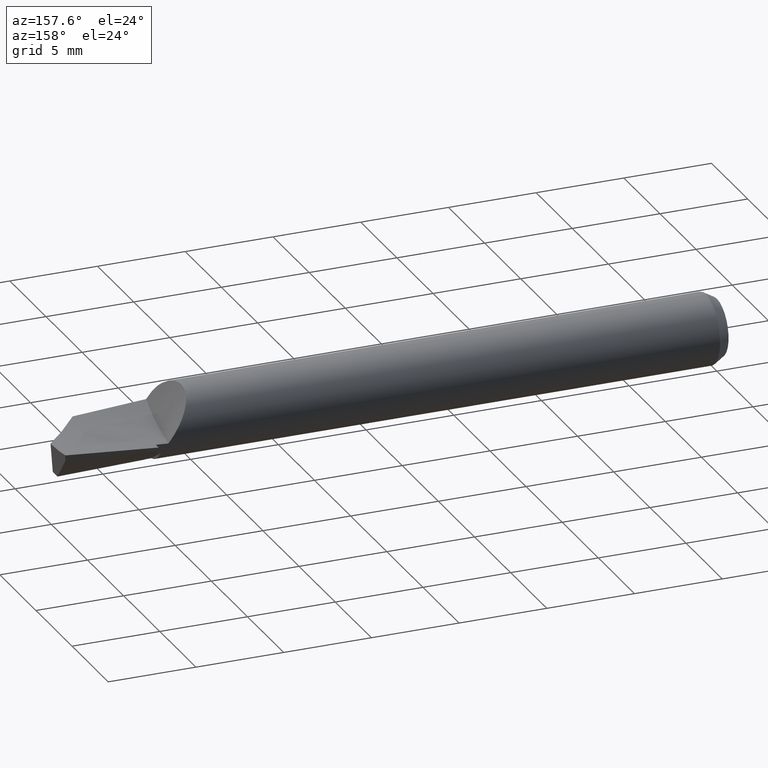
[diagram: clean part render]
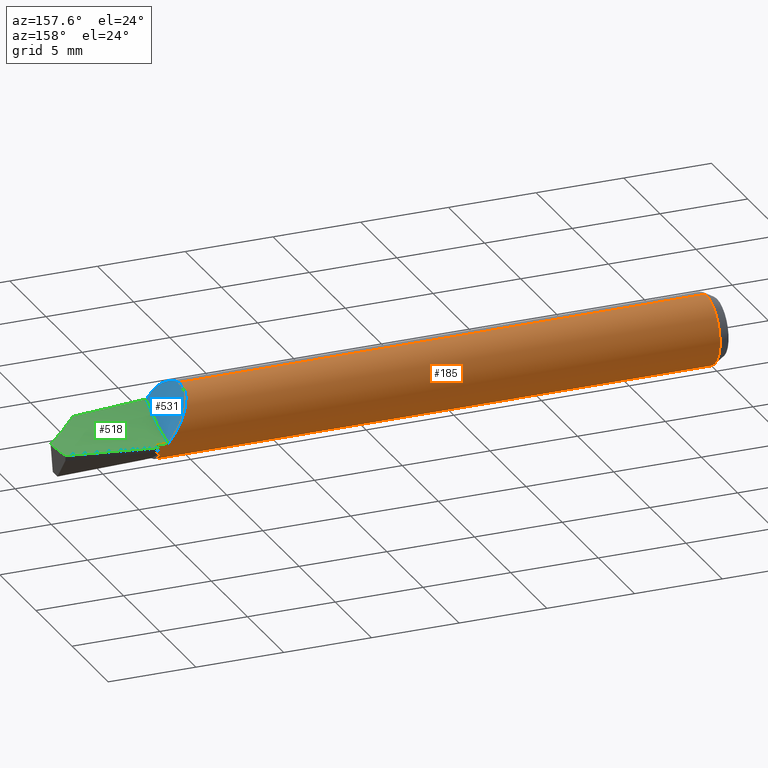
[diagram: same view with three faces highlighted in distinct colors, each labeled with its STEP entity id]
A machine part, auxiliary view with three faces highlighted in distinct colors.
Their STEP definitions:

[orange] entity #185 — the highlighted cylindrical surface (partial cylindrical patch) has radius 1.9812 mm, axis along (-1, -0, -0).
#5 = CARTESIAN_POINT ( 'NONE',  ( 0.000000000000000000, 9.552245033349355435E-18, -0.07799999999999999989 ) ) ;
#9 = CARTESIAN_POINT ( 'NONE',  ( 1.233192256730258451, 0.07422136678863301695, 0.02437706961657288077 ) ) ;
#12 = VECTOR ( 'NONE', #69, 39.37007874015748143 ) ;
#13 = CARTESIAN_POINT ( 'NONE',  ( 1.242361960131574294, 0.07733579007655222437, 0.01030139600367783841 ) ) ;
#16 = CARTESIAN_POINT ( 'NONE',  ( 1.207000000000000073, 0.03213068168702906680, 0.07107474441970799972 ) ) ;
#17 = CARTESIAN_POINT ( 'NONE',  ( 1.275000000000000133, 0.000000000000000000, 0.000000000000000000 ) ) ;
#23 = CARTESIAN_POINT ( 'NONE',  ( 1.262236740664101964, 0.07537366590899778618, -0.02007013919829108220 ) ) ;
#25 = CIRCLE ( 'NONE', #117, 0.07799999999999999989 ) ;
#27 = DIRECTION ( 'NONE',  ( 1.000000000000000000, 0.000000000000000000, 0.000000000000000000 ) ) ;
#28 = VERTEX_POINT ( 'NONE', #110 ) ;
#31 = CARTESIAN_POINT ( 'NONE',  ( 1.274999347077172551, 0.06389939126767772704, -0.04473106073648399489 ) ) ;
#35 = CARTESIAN_POINT ( 'NONE',  ( 1.207000000000000073, 0.003571119351597724229, 0.07791820779879786441 ) ) ;
#60 = CARTESIAN_POINT ( 'NONE',  ( 1.228268766956857050, 0.07111053863217740856, 0.03205434320859988639 ) ) ;
#62 = CARTESIAN_POINT ( 'NONE',  ( 1.260958533542752669, 0.07589766672437804618, -0.01810292729888073743 ) ) ;
#63 =( BOUNDED_CURVE ( )  B_SPLINE_CURVE ( 2, ( #604, #554, #389 ),
 .UNSPECIFIED., .F., .T. ) 
 B_SPLINE_CURVE_WITH_KNOTS ( ( 3, 3 ),
 ( 0.6854572081151814045, 0.7063240282674865256 ),
 .UNSPECIFIED. ) 
 CURVE ( )  GEOMETRIC_REPRESENTATION_ITEM ( )  RATIONAL_B_SPLINE_CURVE ( ( 0.9929101760011449507, 0.9927464883112000482, 0.9926357211951485349 ) ) 
 REPRESENTATION_ITEM ( '' )  );
#66 = CARTESIAN_POINT ( 'NONE',  ( 1.249726511411378471, 0.07827520131749497734, -0.0009205597306624405379 ) ) ;
#69 = DIRECTION ( 'NONE',  ( -1.000000000000000000, -0.000000000000000000, -0.000000000000000000 ) ) ;
#70 = CARTESIAN_POINT ( 'NONE',  ( 1.290000000000000258, 0.07588223334175300816, -0.01805233124156403746 ) ) ;
#72 = AXIS2_PLACEMENT_3D ( 'NONE', #17, #27, #181 ) ;
#96 = DIRECTION ( 'NONE',  ( -1.000000000000000000, -0.000000000000000000, -0.000000000000000000 ) ) ;
#97 = ORIENTED_EDGE ( 'NONE', *, *, #475, .T. ) ;
#99 = AXIS2_PLACEMENT_3D ( 'NONE', #378, #130, #334 ) ;
#110 = CARTESIAN_POINT ( 'NONE',  ( 1.207000000000000073, 0.03213068168702906680, 0.07107474441970799972 ) ) ;
#111 = EDGE_CURVE ( 'NONE', #175, #292, #646, .T. ) ;
#113 = CARTESIAN_POINT ( 'NONE',  ( 1.228878611020636002, 0.07153477840623517769, 0.03109318362730305318 ) ) ;
#115 = DIRECTION ( 'NONE',  ( 0.000000000000000000, 0.000000000000000000, 1.000000000000000000 ) ) ;
#117 = AXIS2_PLACEMENT_3D ( 'NONE', #408, #96, #306 ) ;
#119 = CARTESIAN_POINT ( 'NONE',  ( 0.02499999999999999792, 0.000000000000000000, 0.07799999999999999989 ) ) ;
#121 = CARTESIAN_POINT ( 'NONE',  ( 1.223166513449263970, 0.06685152326800650191, 0.04026820105912660985 ) ) ;
#123 = CARTESIAN_POINT ( 'NONE',  ( 1.208149882622706839, 0.03997953559271986285, 0.06752654570148050595 ) ) ;
#124 = EDGE_CURVE ( 'NONE', #292, #302, #170, .T. ) ;
#127 = VECTOR ( 'NONE', #377, 39.37007874015748143 ) ;
#130 = DIRECTION ( 'NONE',  ( -1.000000000000000000, -0.000000000000000000, -0.000000000000000000 ) ) ;
#131 = ORIENTED_EDGE ( 'NONE', *, *, #313, .T. ) ;
#147 = VERTEX_POINT ( 'NONE', #70 ) ;
#149 = DIRECTION ( 'NONE',  ( 0.000000000000000000, 0.000000000000000000, 1.000000000000000000 ) ) ;
#152 = ORIENTED_EDGE ( 'NONE', *, *, #124, .F. ) ;
#155 = ORIENTED_EDGE ( 'NONE', *, *, #422, .T. ) ;
#162 = CARTESIAN_POINT ( 'NONE',  ( 1.290000000000000258, 0.01440788481498633290, -0.07665776448056696446 ) ) ;
#167 = CARTESIAN_POINT ( 'NONE',  ( 1.258915496128698130, 0.07666655963511331828, -0.01500027379133487410 ) ) ;
#169 = CARTESIAN_POINT ( 'NONE',  ( 1.228746349734594290, 0.07144407146482484317, 0.03130130681385237534 ) ) ;
#170 = CIRCLE ( 'NONE', #72, 0.07799999999999999989 ) ;
#173 = LINE ( 'NONE', #5, #127 ) ;
#174 = CARTESIAN_POINT ( 'NONE',  ( 1.290000000000000258, 0.000000000000000000, -0.07799999999999999989 ) ) ;
#175 = VERTEX_POINT ( 'NONE', #340 ) ;
#176 = CARTESIAN_POINT ( 'NONE',  ( 1.230860510622918902, 0.07288438005964482935, 0.02797697279419745359 ) ) ;
#177 = EDGE_CURVE ( 'NONE', #147, #328, #525, .T. ) ;
#180 = CARTESIAN_POINT ( 'NONE',  ( 1.225242906688724487, 0.06873737467267414247, 0.03688952246988545097 ) ) ;
#181 = DIRECTION ( 'NONE',  ( 0.000000000000000000, 0.000000000000000000, -1.000000000000000000 ) ) ;
#185 = ADVANCED_FACE ( 'NONE', ( #231 ), #552, .T. ) ;
#194 = EDGE_LOOP ( 'NONE', ( #400, #97, #538, #584, #363, #131, #155, #533, #581, #245, #152, #619 ) ) ;
#214 = CIRCLE ( 'NONE', #517, 0.07799999999999999989 ) ;
#227 = CARTESIAN_POINT ( 'NONE',  ( 1.218178046635909562, 0.06118653591288300553, 0.04863726075567930546 ) ) ;
#231 = FACE_OUTER_BOUND ( 'NONE', #194, .T. ) ;
#235 = DIRECTION ( 'NONE',  ( -1.000000000000000000, -0.000000000000000000, -0.000000000000000000 ) ) ;
#242 = VERTEX_POINT ( 'NONE', #174 ) ;
#244 = CARTESIAN_POINT ( 'NONE',  ( 1.207075393151257670, 0.002981413769860111890, 0.07794523606406283944 ) ) ;
#245 = ORIENTED_EDGE ( 'NONE', *, *, #573, .F. ) ;
#247 = CARTESIAN_POINT ( 'NONE',  ( 1.207408988815073636, 0.0005994693865612787985, 0.07799826944352111768 ) ) ;
#253 = EDGE_CURVE ( 'NONE', #460, #665, #585, .T. ) ;
#257 = CARTESIAN_POINT ( 'NONE',  ( 0.02499999999999999792, 9.552245033349355435E-18, -0.07799999999999999989 ) ) ;
#268 = CARTESIAN_POINT ( 'NONE',  ( 1.228554949269598406, 0.07131117426569102968, 0.03160290462242616727 ) ) ;
#274 = EDGE_CURVE ( 'NONE', #438, #404, #304, .T. ) ;
#292 = VERTEX_POINT ( 'NONE', #506 ) ;
#302 = VERTEX_POINT ( 'NONE', #31 ) ;
#304 = B_SPLINE_CURVE_WITH_KNOTS ( 'NONE', 3,
 ( #309, #498, #247, #417, #406, #244, #35 ),
 .UNSPECIFIED., .F., .F.,
 ( 4, 2, 1, 4 ),
 ( 0.9698452171082266871, 0.9773839128311698765, 0.9849226085541130660, 1.000000000000000000 ),
 .UNSPECIFIED. ) ;
#306 = DIRECTION ( 'NONE',  ( 0.000000000000000000, 0.000000000000000000, 1.000000000000000000 ) ) ;
#309 = CARTESIAN_POINT ( 'NONE',  ( 1.207498938882741735, -4.673349976021370457E-07, 0.07800176490495329407 ) ) ;
#313 = EDGE_CURVE ( 'NONE', #404, #28, #493, .T. ) ;
#316 = AXIS2_PLACEMENT_3D ( 'NONE', #639, #235, #386 ) ;
#326 = CARTESIAN_POINT ( 'NONE',  ( 1.238778033099654285, 0.07642429516971288583, 0.01579024639123554827 ) ) ;
#327 = CARTESIAN_POINT ( 'NONE',  ( 1.274998041231548473, 0.01328314177590176129, -0.07686064105601791985 ) ) ;
#328 = VERTEX_POINT ( 'NONE', #563 ) ;
#329 = CARTESIAN_POINT ( 'NONE',  ( 1.241141698783302827, 0.07705463380532516504, 0.01216900170301853795 ) ) ;
#334 = DIRECTION ( 'NONE',  ( 0.000000000000000000, 0.000000000000000000, 1.000000000000000000 ) ) ;
#340 = CARTESIAN_POINT ( 'NONE',  ( 1.290000000000000258, 0.01440788481498633290, -0.07665776448056696446 ) ) ;
#363 = ORIENTED_EDGE ( 'NONE', *, *, #274, .T. ) ;
#364 = CARTESIAN_POINT ( 'NONE',  ( 1.289999999999999813, 0.06455258005694464174, -0.04378315210205580010 ) ) ;
#371 = EDGE_CURVE ( 'NONE', #175, #242, #25, .T. ) ;
#375 = CARTESIAN_POINT ( 'NONE',  ( 1.244944988539522290, 0.07774102695451454159, 0.006359667307173379885 ) ) ;
#377 = DIRECTION ( 'NONE',  ( -1.000000000000000000, -0.000000000000000000, -0.000000000000000000 ) ) ;
#378 = CARTESIAN_POINT ( 'NONE',  ( 0.02499999999999999792, 0.000000000000000000, 0.000000000000000000 ) ) ;
#386 = DIRECTION ( 'NONE',  ( 0.000000000000000000, 0.000000000000000000, 1.000000000000000000 ) ) ;
#389 = CARTESIAN_POINT ( 'NONE',  ( 1.289999999999999813, 0.06455258005694464174, -0.04378315210205580010 ) ) ;
#393 = CARTESIAN_POINT ( 'NONE',  ( 1.276110714727377804, 0.07564140876576563866, -0.01906462745588827223 ) ) ;
#395 = B_SPLINE_CURVE_WITH_KNOTS ( 'NONE', 3,
 ( #16, #123, #429, #628, #227, #577, #121, #180, #477, #431, #60, #268, #169, #113, #176, #9, #575, #326, #329, #13, #526, #529, #375, #523, #66, #436, #167, #62, #534 ),
 .UNSPECIFIED., .F., .F.,
 ( 4, 2, 2, 2, 1, 1, 1, 2, 2, 2, 2, 1, 1, 2, 2, 2, 4 ),
 ( 0.000000000000000000, 0.2499999999999992784, 0.3749999999999988898, 0.4374999999999980016, 0.4687499999999976685, 0.4843749999999974465, 0.4921874999999973355, 0.4960937499999972800, 0.4999999999999972244, 0.6249999999999977796, 0.6874999999999997780, 0.7187500000000007772, 0.7343750000000013323, 0.7421875000000015543, 0.7500000000000016653, 0.8750000000000007772, 1.000000000000000000 ),
 .UNSPECIFIED. ) ;
#400 = ORIENTED_EDGE ( 'NONE', *, *, #371, .T. ) ;
#404 = VERTEX_POINT ( 'NONE', #484 ) ;
#406 = CARTESIAN_POINT ( 'NONE',  ( 1.207193420762889602, 0.002092418631500826427, 0.07797591368788313326 ) ) ;
#408 = CARTESIAN_POINT ( 'NONE',  ( 1.290000000000000258, 0.000000000000000000, 0.000000000000000000 ) ) ;
#417 = CARTESIAN_POINT ( 'NONE',  ( 1.207321430627179115, 0.001197425466038306045, 0.07799138139552874716 ) ) ;
#422 = EDGE_CURVE ( 'NONE', #28, #328, #395, .T. ) ;
#429 = CARTESIAN_POINT ( 'NONE',  ( 1.210552177974372867, 0.04770323450014880839, 0.06245259912425562415 ) ) ;
#431 = CARTESIAN_POINT ( 'NONE',  ( 1.227607436920391981, 0.07063343148871152610, 0.03310094890141170726 ) ) ;
#436 = CARTESIAN_POINT ( 'NONE',  ( 1.253299485063011476, 0.07785617904781311216, -0.006417551259963640529 ) ) ;
#438 = VERTEX_POINT ( 'NONE', #630 ) ;
#453 = EDGE_CURVE ( 'NONE', #438, #460, #474, .T. ) ;
#460 = VERTEX_POINT ( 'NONE', #119 ) ;
#474 = LINE ( 'NONE', #626, #12 ) ;
#475 = EDGE_CURVE ( 'NONE', #242, #665, #173, .T. ) ;
#477 = CARTESIAN_POINT ( 'NONE',  ( 1.226310491620518750, 0.06964396095383332264, 0.03516681234429755443 ) ) ;
#482 = CARTESIAN_POINT ( 'NONE',  ( 1.290000000000000258, 0.07588223334175300816, -0.01805233124156403746 ) ) ;
#484 = CARTESIAN_POINT ( 'NONE',  ( 1.207000000000000073, 0.003571119351597724229, 0.07791820779879786441 ) ) ;
#493 = CIRCLE ( 'NONE', #562, 0.07799999999999999989 ) ;
#498 = CARTESIAN_POINT ( 'NONE',  ( 1.207462711655062915, 0.0002421760786775242465, 0.07800000102413882919 ) ) ;
#506 = CARTESIAN_POINT ( 'NONE',  ( 1.274998041231548473, 0.01328314177590176129, -0.07686064105601791985 ) ) ;
#509 = EDGE_CURVE ( 'NONE', #147, #647, #214, .T. ) ;
#517 = AXIS2_PLACEMENT_3D ( 'NONE', #633, #572, #115 ) ;
#523 = CARTESIAN_POINT ( 'NONE',  ( 1.245117448280305572, 0.07776245286613917007, 0.006096903407587568602 ) ) ;
#525 =( BOUNDED_CURVE ( )  B_SPLINE_CURVE ( 2, ( #482, #393, #23 ),
 .UNSPECIFIED., .F., .T. ) 
 B_SPLINE_CURVE_WITH_KNOTS ( ( 3, 3 ),
 ( 0.2899749402918460062, 0.3281097669558161178 ),
 .UNSPECIFIED. ) 
 CURVE ( )  GEOMETRIC_REPRESENTATION_ITEM ( )  RATIONAL_B_SPLINE_CURVE ( ( 0.9781445019120511564, 0.9783270810621454983, 0.9786838349374671342 ) ) 
 REPRESENTATION_ITEM ( '' )  );
#526 = CARTESIAN_POINT ( 'NONE',  ( 1.243852848257505528, 0.07759107518607237519, 0.008024756676677036529 ) ) ;
#529 = CARTESIAN_POINT ( 'NONE',  ( 1.244506211001393359, 0.07768342052808686893, 0.007028429074615515255 ) ) ;
#533 = ORIENTED_EDGE ( 'NONE', *, *, #177, .F. ) ;
#534 = CARTESIAN_POINT ( 'NONE',  ( 1.262236740664101964, 0.07537366590899778618, -0.02007013919829108220 ) ) ;
#538 = ORIENTED_EDGE ( 'NONE', *, *, #253, .F. ) ;
#552 = CYLINDRICAL_SURFACE ( 'NONE', #316, 0.07799999999999999989 ) ;
#554 = CARTESIAN_POINT ( 'NONE',  ( 1.282496619626345424, 0.06423296652096859016, -0.04425438081396506490 ) ) ;
#562 = AXIS2_PLACEMENT_3D ( 'NONE', #608, #611, #149 ) ;
#563 = CARTESIAN_POINT ( 'NONE',  ( 1.262236740664101964, 0.07537366590899778618, -0.02007013919829108220 ) ) ;
#572 = DIRECTION ( 'NONE',  ( -1.000000000000000000, -0.000000000000000000, -0.000000000000000000 ) ) ;
#573 = EDGE_CURVE ( 'NONE', #302, #647, #63, .T. ) ;
#575 = CARTESIAN_POINT ( 'NONE',  ( 1.237304731994411933, 0.07591366208836342055, 0.01805212206638834999 ) ) ;
#577 = CARTESIAN_POINT ( 'NONE',  ( 1.221860620121795638, 0.06549739134622967196, 0.04243153962028078929 ) ) ;
#581 = ORIENTED_EDGE ( 'NONE', *, *, #509, .T. ) ;
#583 = CARTESIAN_POINT ( 'NONE',  ( 1.282496619626345202, 0.01384828921738335585, -0.07676294089639047746 ) ) ;
#584 = ORIENTED_EDGE ( 'NONE', *, *, #453, .F. ) ;
#585 = CIRCLE ( 'NONE', #99, 0.07799999999999999989 ) ;
#604 = CARTESIAN_POINT ( 'NONE',  ( 1.274999347077172551, 0.06389939126767772704, -0.04473106073648399489 ) ) ;
#608 = CARTESIAN_POINT ( 'NONE',  ( 1.207000000000000073, 0.000000000000000000, 0.000000000000000000 ) ) ;
#611 = DIRECTION ( 'NONE',  ( -1.000000000000000000, 0.000000000000000000, 0.000000000000000000 ) ) ;
#619 = ORIENTED_EDGE ( 'NONE', *, *, #111, .F. ) ;
#626 = CARTESIAN_POINT ( 'NONE',  ( 0.000000000000000000, 0.000000000000000000, 0.07799999999999999989 ) ) ;
#628 = CARTESIAN_POINT ( 'NONE',  ( 1.216036472974008076, 0.05798182493263361048, 0.05239360082366179006 ) ) ;
#630 = CARTESIAN_POINT ( 'NONE',  ( 1.207498938882741735, -4.673349976021370457E-07, 0.07800176490495329407 ) ) ;
#633 = CARTESIAN_POINT ( 'NONE',  ( 1.290000000000000258, 0.000000000000000000, 0.000000000000000000 ) ) ;
#639 = CARTESIAN_POINT ( 'NONE',  ( 0.000000000000000000, 0.000000000000000000, 0.000000000000000000 ) ) ;
#646 =( BOUNDED_CURVE ( )  B_SPLINE_CURVE ( 2, ( #162, #583, #327 ),
 .UNSPECIFIED., .F., .T. ) 
 B_SPLINE_CURVE_WITH_KNOTS ( ( 3, 3 ),
 ( 0.2936759717325145291, 0.3145427918848182625 ),
 .UNSPECIFIED. ) 
 CURVE ( )  GEOMETRIC_REPRESENTATION_ITEM ( )  RATIONAL_B_SPLINE_CURVE ( ( 0.9926357211951484238, 0.9927464883111999372, 0.9929101760011448397 ) ) 
 REPRESENTATION_ITEM ( '' )  );
#647 = VERTEX_POINT ( 'NONE', #364 ) ;
#665 = VERTEX_POINT ( 'NONE', #257 ) ;

[blue] entity #531 — the highlighted face is a freeform B-spline surface patch.
#9 = CARTESIAN_POINT ( 'NONE',  ( 1.233192256730258451, 0.07422136678863301695, 0.02437706961657288077 ) ) ;
#13 = CARTESIAN_POINT ( 'NONE',  ( 1.242361960131574294, 0.07733579007655222437, 0.01030139600367783841 ) ) ;
#16 = CARTESIAN_POINT ( 'NONE',  ( 1.207000000000000073, 0.03213068168702906680, 0.07107474441970799972 ) ) ;
#21 = CARTESIAN_POINT ( 'NONE',  ( 1.206999999999999629, -0.004920103580575083124, 0.07723793751302800159 ) ) ;
#24 = ORIENTED_EDGE ( 'NONE', *, *, #199, .F. ) ;
#28 = VERTEX_POINT ( 'NONE', #110 ) ;
#35 = CARTESIAN_POINT ( 'NONE',  ( 1.207000000000000073, 0.003571119351597724229, 0.07791820779879786441 ) ) ;
#41 = ORIENTED_EDGE ( 'NONE', *, *, #399, .F. ) ;
#49 = CARTESIAN_POINT ( 'NONE',  ( 1.243898404004956326, -0.07389056700951129875, 0.02749594350433244572 ) ) ;
#60 = CARTESIAN_POINT ( 'NONE',  ( 1.228268766956857050, 0.07111053863217740856, 0.03205434320859988639 ) ) ;
#62 = CARTESIAN_POINT ( 'NONE',  ( 1.260958533542752669, 0.07589766672437804618, -0.01810292729888073743 ) ) ;
#66 = CARTESIAN_POINT ( 'NONE',  ( 1.249726511411378471, 0.07827520131749497734, -0.0009205597306624405379 ) ) ;
#68 = CARTESIAN_POINT ( 'NONE',  ( 1.251837397238958038, -0.05235793208925047793, 0.006052018071815274368 ) ) ;
#75 = EDGE_CURVE ( 'NONE', #328, #140, #210, .T. ) ;
#77 = CARTESIAN_POINT ( 'NONE',  ( 1.207000000000000073, 0.04340871078192806015, 0.06594305589205307072 ) ) ;
#87 = CARTESIAN_POINT ( 'NONE',  ( 1.227055970727156886, -0.05435023697217546135, 0.05625500250299384636 ) ) ;
#91 = CARTESIAN_POINT ( 'NONE',  ( 1.219553846262205754, -0.04012620017288952984, 0.06693226266428028981 ) ) ;
#110 = CARTESIAN_POINT ( 'NONE',  ( 1.207000000000000073, 0.03213068168702906680, 0.07107474441970799972 ) ) ;
#113 = CARTESIAN_POINT ( 'NONE',  ( 1.228878611020636002, 0.07153477840623517769, 0.03109318362730305318 ) ) ;
#114 = CARTESIAN_POINT ( 'NONE',  ( 1.249636026273901690, -0.07628215470666116493, 0.01627983026044845308 ) ) ;
#121 = CARTESIAN_POINT ( 'NONE',  ( 1.223166513449263970, 0.06685152326800650191, 0.04026820105912660985 ) ) ;
#123 = CARTESIAN_POINT ( 'NONE',  ( 1.208149882622706839, 0.03997953559271986285, 0.06752654570148050595 ) ) ;
#132 = CARTESIAN_POINT ( 'NONE',  ( 1.249125152857889498, -0.08368678484454253330, 0.01950772297894623475 ) ) ;
#140 = VERTEX_POINT ( 'NONE', #541 ) ;
#166 = CARTESIAN_POINT ( 'NONE',  ( 1.262236740664101964, 0.07537366590899778618, -0.02007013919829108220 ) ) ;
#167 = CARTESIAN_POINT ( 'NONE',  ( 1.258915496128698130, 0.07666655963511331828, -0.01500027379133487410 ) ) ;
#169 = CARTESIAN_POINT ( 'NONE',  ( 1.228746349734594290, 0.07144407146482484317, 0.03130130681385237534 ) ) ;
#176 = CARTESIAN_POINT ( 'NONE',  ( 1.230860510622918902, 0.07288438005964482935, 0.02797697279419745359 ) ) ;
#180 = CARTESIAN_POINT ( 'NONE',  ( 1.225242906688724487, 0.06873737467267414247, 0.03688952246988545097 ) ) ;
#189 = CARTESIAN_POINT ( 'NONE',  ( 1.207000000000000073, 0.01309139763462998339, 0.07563926532108279643 ) ) ;
#196 = CARTESIAN_POINT ( 'NONE',  ( 1.206999999999999851, -0.04961868045772162977, 0.09693562702557656507 ) ) ;
#199 = EDGE_CURVE ( 'NONE', #404, #28, #601, .T. ) ;
#201 = CARTESIAN_POINT ( 'NONE',  ( 1.249636026273901690, -0.07628215470666116493, 0.01627983026044845308 ) ) ;
#210 = B_SPLINE_CURVE_WITH_KNOTS ( 'NONE', 3,
 ( #166, #325, #471, #430, #68, #114 ),
 .UNSPECIFIED., .F., .F.,
 ( 4, 2, 4 ),
 ( 0.000000000000000000, 0.5000000000000000000, 1.000000000000000000 ),
 .UNSPECIFIED. ) ;
#227 = CARTESIAN_POINT ( 'NONE',  ( 1.218178046635909562, 0.06118653591288300553, 0.04863726075567930546 ) ) ;
#241 = B_SPLINE_CURVE_WITH_KNOTS ( 'NONE', 3,
 ( #201, #49, #251, #255, #87, #459, #463, #566, #451, #296, #312, #403, #555, #91, #502, #258, #466, #579, #637 ),
 .UNSPECIFIED., .F., .F.,
 ( 4, 2, 2, 1, 2, 2, 1, 1, 2, 2, 4 ),
 ( 0.000000000000000000, 0.2424613042770835947, 0.4849226085541671893, 0.4924995243128265088, 0.4962879821921559187, 0.5000764400714853286, 0.5152302715887997486, 0.5455379346234286997, 0.6061532606926853806, 0.7273839128311987423, 0.9698452171082266871 ),
 .UNSPECIFIED. ) ;
#244 = CARTESIAN_POINT ( 'NONE',  ( 1.207075393151257670, 0.002981413769860111890, 0.07794523606406283944 ) ) ;
#247 = CARTESIAN_POINT ( 'NONE',  ( 1.207408988815073636, 0.0005994693865612787985, 0.07799826944352111768 ) ) ;
#251 = CARTESIAN_POINT ( 'NONE',  ( 1.238862976349409450, -0.06935741945142365195, 0.03672750959377762969 ) ) ;
#255 = CARTESIAN_POINT ( 'NONE',  ( 1.230441759710509952, -0.05958496316865238840, 0.05107831005536581787 ) ) ;
#258 = CARTESIAN_POINT ( 'NONE',  ( 1.215083676285801273, -0.02931723955610072638, 0.07242544898273661769 ) ) ;
#262 = B_SPLINE_SURFACE_WITH_KNOTS ( 'NONE', 1, 3, ( 
 ( #196, #21, #77, #441 ),
 ( #132, #651, #656, #544 ) ),
 .UNSPECIFIED., .F., .F., .F.,
 ( 2, 2 ),
 ( 4, 4 ),
 ( 0.000000000000000000, 1.000000000000000000 ),
 ( 0.01089608493490853633, 0.01461970672265010263 ),
 .UNSPECIFIED. ) ;
#268 = CARTESIAN_POINT ( 'NONE',  ( 1.228554949269598406, 0.07131117426569102968, 0.03160290462242616727 ) ) ;
#274 = EDGE_CURVE ( 'NONE', #438, #404, #304, .T. ) ;
#280 = EDGE_LOOP ( 'NONE', ( #41, #655, #616, #24, #490 ) ) ;
#296 = CARTESIAN_POINT ( 'NONE',  ( 1.224092724940147869, -0.04910924457521492759, 0.06059957606048550077 ) ) ;
#304 = B_SPLINE_CURVE_WITH_KNOTS ( 'NONE', 3,
 ( #309, #498, #247, #417, #406, #244, #35 ),
 .UNSPECIFIED., .F., .F.,
 ( 4, 2, 1, 4 ),
 ( 0.9698452171082266871, 0.9773839128311698765, 0.9849226085541130660, 1.000000000000000000 ),
 .UNSPECIFIED. ) ;
#309 = CARTESIAN_POINT ( 'NONE',  ( 1.207498938882741735, -4.673349976021370457E-07, 0.07800176490495329407 ) ) ;
#312 = CARTESIAN_POINT ( 'NONE',  ( 1.223741914051305057, -0.04847555582096993443, 0.06111092235590564331 ) ) ;
#325 = CARTESIAN_POINT ( 'NONE',  ( 1.260155652957460681, 0.04941456247743349767, -0.01833526552309209037 ) ) ;
#326 = CARTESIAN_POINT ( 'NONE',  ( 1.238778033099654285, 0.07642429516971288583, 0.01579024639123554827 ) ) ;
#328 = VERTEX_POINT ( 'NONE', #563 ) ;
#329 = CARTESIAN_POINT ( 'NONE',  ( 1.241141698783302827, 0.07705463380532516504, 0.01216900170301853795 ) ) ;
#348 = FACE_OUTER_BOUND ( 'NONE', #280, .T. ) ;
#375 = CARTESIAN_POINT ( 'NONE',  ( 1.244944988539522290, 0.07774102695451454159, 0.006359667307173379885 ) ) ;
#395 = B_SPLINE_CURVE_WITH_KNOTS ( 'NONE', 3,
 ( #16, #123, #429, #628, #227, #577, #121, #180, #477, #431, #60, #268, #169, #113, #176, #9, #575, #326, #329, #13, #526, #529, #375, #523, #66, #436, #167, #62, #534 ),
 .UNSPECIFIED., .F., .F.,
 ( 4, 2, 2, 2, 1, 1, 1, 2, 2, 2, 2, 1, 1, 2, 2, 2, 4 ),
 ( 0.000000000000000000, 0.2499999999999992784, 0.3749999999999988898, 0.4374999999999980016, 0.4687499999999976685, 0.4843749999999974465, 0.4921874999999973355, 0.4960937499999972800, 0.4999999999999972244, 0.6249999999999977796, 0.6874999999999997780, 0.7187500000000007772, 0.7343750000000013323, 0.7421875000000015543, 0.7500000000000016653, 0.8750000000000007772, 1.000000000000000000 ),
 .UNSPECIFIED. ) ;
#399 = EDGE_CURVE ( 'NONE', #140, #438, #241, .T. ) ;
#403 = CARTESIAN_POINT ( 'NONE',  ( 1.222909934234173379, -0.04694550101351054744, 0.06231412156065058161 ) ) ;
#404 = VERTEX_POINT ( 'NONE', #484 ) ;
#406 = CARTESIAN_POINT ( 'NONE',  ( 1.207193420762889602, 0.002092418631500826427, 0.07797591368788313326 ) ) ;
#417 = CARTESIAN_POINT ( 'NONE',  ( 1.207321430627179115, 0.001197425466038306045, 0.07799138139552874716 ) ) ;
#422 = EDGE_CURVE ( 'NONE', #28, #328, #395, .T. ) ;
#429 = CARTESIAN_POINT ( 'NONE',  ( 1.210552177974372867, 0.04770323450014880839, 0.06245259912425562415 ) ) ;
#430 = CARTESIAN_POINT ( 'NONE',  ( 1.253916392920315870, -0.02743348495276865320, -0.002204790530044670356 ) ) ;
#431 = CARTESIAN_POINT ( 'NONE',  ( 1.227607436920391981, 0.07063343148871152610, 0.03310094890141170726 ) ) ;
#436 = CARTESIAN_POINT ( 'NONE',  ( 1.253299485063011476, 0.07785617904781311216, -0.006417551259963640529 ) ) ;
#438 = VERTEX_POINT ( 'NONE', #630 ) ;
#441 = CARTESIAN_POINT ( 'NONE',  ( 1.207000000000000295, 0.09199749195022051407, 0.06372399047945541406 ) ) ;
#451 = CARTESIAN_POINT ( 'NONE',  ( 1.224101494845487803, -0.04912488293526755256, 0.06058674726895770662 ) ) ;
#459 = CARTESIAN_POINT ( 'NONE',  ( 1.224414970778422651, -0.04968500731398107356, 0.06012847754148815949 ) ) ;
#463 = CARTESIAN_POINT ( 'NONE',  ( 1.224296133557657429, -0.04947390781766131812, 0.06030248468299862635 ) ) ;
#466 = CARTESIAN_POINT ( 'NONE',  ( 1.210740023081815497, -0.01631038412625025052, 0.07682288820278296293 ) ) ;
#471 = CARTESIAN_POINT ( 'NONE',  ( 1.258075520779900369, 0.02345481554644748834, -0.01439892452332524816 ) ) ;
#477 = CARTESIAN_POINT ( 'NONE',  ( 1.226310491620518750, 0.06964396095383332264, 0.03516681234429755443 ) ) ;
#484 = CARTESIAN_POINT ( 'NONE',  ( 1.207000000000000073, 0.003571119351597724229, 0.07791820779879786441 ) ) ;
#490 = ORIENTED_EDGE ( 'NONE', *, *, #274, .F. ) ;
#498 = CARTESIAN_POINT ( 'NONE',  ( 1.207462711655062915, 0.0002421760786775242465, 0.07800000102413882919 ) ) ;
#502 = CARTESIAN_POINT ( 'NONE',  ( 1.216744175430401365, -0.03368648478273147256, 0.07052219257569093680 ) ) ;
#523 = CARTESIAN_POINT ( 'NONE',  ( 1.245117448280305572, 0.07776245286613917007, 0.006096903407587568602 ) ) ;
#526 = CARTESIAN_POINT ( 'NONE',  ( 1.243852848257505528, 0.07759107518607237519, 0.008024756676677036529 ) ) ;
#529 = CARTESIAN_POINT ( 'NONE',  ( 1.244506211001393359, 0.07768342052808686893, 0.007028429074615515255 ) ) ;
#531 = ADVANCED_FACE ( 'NONE', ( #348 ), #262, .T. ) ;
#534 = CARTESIAN_POINT ( 'NONE',  ( 1.262236740664101964, 0.07537366590899778618, -0.02007013919829108220 ) ) ;
#541 = CARTESIAN_POINT ( 'NONE',  ( 1.249636026273901690, -0.07628215470666116493, 0.01627983026044845308 ) ) ;
#544 = CARTESIAN_POINT ( 'NONE',  ( 1.263232380089333029, 0.08808962876536774456, -0.02074730254694855808 ) ) ;
#555 = CARTESIAN_POINT ( 'NONE',  ( 1.221038412206834733, -0.04331686153096676872, 0.06495399746602677216 ) ) ;
#563 = CARTESIAN_POINT ( 'NONE',  ( 1.262236740664101964, 0.07537366590899778618, -0.02007013919829108220 ) ) ;
#566 = CARTESIAN_POINT ( 'NONE',  ( 1.224179108684065875, -0.04926429189293565769, 0.06047344551391069939 ) ) ;
#575 = CARTESIAN_POINT ( 'NONE',  ( 1.237304731994411933, 0.07591366208836342055, 0.01805212206638834999 ) ) ;
#577 = CARTESIAN_POINT ( 'NONE',  ( 1.221860620121795638, 0.06549739134622967196, 0.04243153962028078929 ) ) ;
#579 = CARTESIAN_POINT ( 'NONE',  ( 1.208694713252240760, -0.007799855248630344247, 0.07799996703830759659 ) ) ;
#601 = B_SPLINE_CURVE_WITH_KNOTS ( 'NONE', 3,
 ( #644, #189, #631, #634 ),
 .UNSPECIFIED., .F., .F.,
 ( 4, 4 ),
 ( 0.000000000000000000, 1.000000000000000000 ),
 .UNSPECIFIED. ) ;
#616 = ORIENTED_EDGE ( 'NONE', *, *, #422, .F. ) ;
#628 = CARTESIAN_POINT ( 'NONE',  ( 1.216036472974008076, 0.05798182493263361048, 0.05239360082366179006 ) ) ;
#630 = CARTESIAN_POINT ( 'NONE',  ( 1.207498938882741735, -4.673349976021370457E-07, 0.07800176490495329407 ) ) ;
#631 = CARTESIAN_POINT ( 'NONE',  ( 1.207000000000000073, 0.02261157847562718370, 0.07335819675684236707 ) ) ;
#634 = CARTESIAN_POINT ( 'NONE',  ( 1.207000000000000073, 0.03213068168702906680, 0.07107474441970799972 ) ) ;
#637 = CARTESIAN_POINT ( 'NONE',  ( 1.207498938882741735, -4.673349976021370457E-07, 0.07800176490495329407 ) ) ;
#644 = CARTESIAN_POINT ( 'NONE',  ( 1.207000000000000073, 0.003571119351597724229, 0.07791820779879786441 ) ) ;
#651 = CARTESIAN_POINT ( 'NONE',  ( 1.253759010919542005, -0.02963939165133780071, -0.004736002810269904564 ) ) ;
#655 = ORIENTED_EDGE ( 'NONE', *, *, #75, .F. ) ;
#656 = CARTESIAN_POINT ( 'NONE',  ( 1.258639637831739044, 0.02915726440626069740, -0.01846262539429283436 ) ) ;

[green] entity #518 — the highlighted face is a freeform B-spline surface patch.
#19 = B_SPLINE_CURVE_WITH_KNOTS ( 'NONE', 3,
 ( #396, #294, #496, #29 ),
 .UNSPECIFIED., .F., .F.,
 ( 4, 4 ),
 ( 4.377117882982191852E-19, 0.002180545539404321869 ),
 .UNSPECIFIED. ) ;
#23 = CARTESIAN_POINT ( 'NONE',  ( 1.262236740664101964, 0.07537366590899778618, -0.02007013919829108220 ) ) ;
#29 = CARTESIAN_POINT ( 'NONE',  ( 1.498210553536294398, 0.006610553536293644825, -0.008504524376991735857 ) ) ;
#30 = EDGE_CURVE ( 'NONE', #140, #660, #666, .T. ) ;
#37 = CARTESIAN_POINT ( 'NONE',  ( 1.499999999999999556, -0.04866932979611954951, -0.01559319763665635399 ) ) ;
#44 = CARTESIAN_POINT ( 'NONE',  ( 1.498210553536294398, 0.006610553536293644825, -0.008504524376991735857 ) ) ;
#47 =( BOUNDED_CURVE ( )  B_SPLINE_CURVE ( 3, ( #197, #653, #209, #600 ),
 .UNSPECIFIED., .F., .T. ) 
 B_SPLINE_CURVE_WITH_KNOTS ( ( 4, 4 ),
 ( 7.560916247296860552E-05, 0.0004368982233191029733 ),
 .UNSPECIFIED. ) 
 CURVE ( )  GEOMETRIC_REPRESENTATION_ITEM ( )  RATIONAL_B_SPLINE_CURVE ( ( 0.9805333167045410248, 0.9796703147630011488, 0.9788740431655671426, 0.9781445019122390061 ) ) 
 REPRESENTATION_ITEM ( '' )  );
#68 = CARTESIAN_POINT ( 'NONE',  ( 1.251837397238958038, -0.05235793208925047793, 0.006052018071815274368 ) ) ;
#70 = CARTESIAN_POINT ( 'NONE',  ( 1.290000000000000258, 0.07588223334175300816, -0.01805233124156403746 ) ) ;
#75 = EDGE_CURVE ( 'NONE', #328, #140, #210, .T. ) ;
#88 = ORIENTED_EDGE ( 'NONE', *, *, #300, .T. ) ;
#93 =( BOUNDED_CURVE ( )  B_SPLINE_CURVE ( 2, ( #102, #664, #668 ),
 .UNSPECIFIED., .F., .T. ) 
 B_SPLINE_CURVE_WITH_KNOTS ( ( 3, 3 ),
 ( 0.7100250597090421723, 1.000000000000000000 ),
 .UNSPECIFIED. ) 
 CURVE ( )  GEOMETRIC_REPRESENTATION_ITEM ( )  RATIONAL_B_SPLINE_CURVE ( ( 0.9805333167045442444, 0.9791416052276304960, 0.9878452547314452437 ) ) 
 REPRESENTATION_ITEM ( '' )  );
#94 = CARTESIAN_POINT ( 'NONE',  ( 0.9574074074074088170, 0.03488221641757158209, -0.03842249419939992167 ) ) ;
#102 = CARTESIAN_POINT ( 'NONE',  ( 1.290000000000000258, 0.09011996569922225975, -0.01850383155919340869 ) ) ;
#105 = ORIENTED_EDGE ( 'NONE', *, *, #75, .T. ) ;
#108 = CARTESIAN_POINT ( 'NONE',  ( 1.498210553536294398, 0.006610553536293644825, -0.008504524376991735857 ) ) ;
#109 = EDGE_CURVE ( 'NONE', #307, #660, #543, .T. ) ;
#114 = CARTESIAN_POINT ( 'NONE',  ( 1.249636026273901690, -0.07628215470666116493, 0.01627983026044845308 ) ) ;
#128 = CARTESIAN_POINT ( 'NONE',  ( 1.500000000000000222, -0.1419999999999999873, 0.01205098168753953279 ) ) ;
#136 = ORIENTED_EDGE ( 'NONE', *, *, #607, .F. ) ;
#137 = CARTESIAN_POINT ( 'NONE',  ( 0.7765432098765450153, -0.1010320892095850770, 0.1005074281313567963 ) ) ;
#140 = VERTEX_POINT ( 'NONE', #541 ) ;
#145 = CARTESIAN_POINT ( 'NONE',  ( 1.319135802469136198, 0.1441249132155368040, -0.01298744957306248449 ) ) ;
#147 = VERTEX_POINT ( 'NONE', #70 ) ;
#153 = CARTESIAN_POINT ( 'NONE',  ( 1.413707719425090215, -0.07789228057490950319, 0.004097880774202420848 ) ) ;
#166 = CARTESIAN_POINT ( 'NONE',  ( 1.262236740664101964, 0.07537366590899778618, -0.02007013919829108220 ) ) ;
#177 = EDGE_CURVE ( 'NONE', #147, #328, #525, .T. ) ;
#197 = CARTESIAN_POINT ( 'NONE',  ( 1.290000000000000258, 0.09011996569922225975, -0.01850383155919340869 ) ) ;
#204 = CARTESIAN_POINT ( 'NONE',  ( 1.500000000000000222, 0.09199999999999999845, 0.000000000000000000 ) ) ;
#205 = ORIENTED_EDGE ( 'NONE', *, *, #109, .F. ) ;
#209 = CARTESIAN_POINT ( 'NONE',  ( 1.290000000000000258, 0.08062776778442155845, -0.01827052445992781091 ) ) ;
#210 = B_SPLINE_CURVE_WITH_KNOTS ( 'NONE', 3,
 ( #166, #325, #471, #430, #68, #114 ),
 .UNSPECIFIED., .F., .F.,
 ( 4, 2, 4 ),
 ( 0.000000000000000000, 0.5000000000000000000, 1.000000000000000000 ),
 .UNSPECIFIED. ) ;
#213 = CARTESIAN_POINT ( 'NONE',  ( 1.469695330231047814, -0.02190466976895240683, -0.009013655983420583440 ) ) ;
#233 = CARTESIAN_POINT ( 'NONE',  ( 0.7765432098765450153, -0.04730598387687841300, 0.01933895976467695996 ) ) ;
#246 = CARTESIAN_POINT ( 'NONE',  ( 1.138271604938272619, -0.1293146736676117070, 0.05989107891725196919 ) ) ;
#249 = CARTESIAN_POINT ( 'NONE',  ( 1.499999999999999556, 0.04866932979611948706, -0.01559319763665636786 ) ) ;
#267 = EDGE_CURVE ( 'NONE', #602, #336, #93, .T. ) ;
#284 = CARTESIAN_POINT ( 'NONE',  ( 1.138271604938272397, -0.05106739775860396485, 0.001993078398810804383 ) ) ;
#294 = CARTESIAN_POINT ( 'NONE',  ( 1.499096292141820941, 0.06381697989133203186, -0.005356808034226923608 ) ) ;
#298 = CARTESIAN_POINT ( 'NONE',  ( 0.9574074074074087060, 0.1309911480556356644, -0.06149783400141338452 ) ) ;
#300 = EDGE_CURVE ( 'NONE', #602, #147, #47, .T. ) ;
#303 = CARTESIAN_POINT ( 'NONE',  ( 0.9574074074074088170, -0.05071596426222638870, 0.01099763845822366963 ) ) ;
#307 = VERTEX_POINT ( 'NONE', #44 ) ;
#310 = ORIENTED_EDGE ( 'NONE', *, *, #177, .T. ) ;
#317 = CARTESIAN_POINT ( 'NONE',  ( 1.441526390384526568, -0.05007360961547365624, -0.004830854321361215294 ) ) ;
#325 = CARTESIAN_POINT ( 'NONE',  ( 1.260155652957460681, 0.04941456247743349767, -0.01833526552309209037 ) ) ;
#328 = VERTEX_POINT ( 'NONE', #563 ) ;
#333 = CARTESIAN_POINT ( 'NONE',  ( 1.500000000000000222, 0.1419999999999999596, 0.01205098168753953279 ) ) ;
#336 = VERTEX_POINT ( 'NONE', #204 ) ;
#342 = CARTESIAN_POINT ( 'NONE',  ( 0.9574074074074087060, -0.1187542605507602989, 0.08269274488636239873 ) ) ;
#383 = CARTESIAN_POINT ( 'NONE',  ( 0.7765432098765450153, 0.1165245326362046446, -0.08204425301962030292 ) ) ;
#393 = CARTESIAN_POINT ( 'NONE',  ( 1.276110714727377804, 0.07564140876576563866, -0.01906462745588827223 ) ) ;
#396 = CARTESIAN_POINT ( 'NONE',  ( 1.500000000000000222, 0.09199999999999999845, 0.000000000000000000 ) ) ;
#421 = CARTESIAN_POINT ( 'NONE',  ( 1.413707719425090215, -0.07789228057490950319, 0.004097880774202420848 ) ) ;
#424 =( BOUNDED_SURFACE ( )  B_SPLINE_SURFACE ( 3, 2, ( 
 ( #128, #504, #246, #342, #137 ),
 ( #37, #491, #284, #303, #233 ),
 ( #249, #661, #454, #94, #539 ),
 ( #333, #145, #598, #298, #383 ) ),
 .UNSPECIFIED., .F., .F., .T. ) 
 B_SPLINE_SURFACE_WITH_KNOTS ( ( 4, 4 ),
 ( 3, 2, 3 ),
 ( 0.000000000000000000, 1.000000000000000000 ),
 ( 0.000000000000000000, 0.5000000000000000000, 1.000000000000000000 ),
 .UNSPECIFIED. ) 
 GEOMETRIC_REPRESENTATION_ITEM ( )  RATIONAL_B_SPLINE_SURFACE ( (
 ( 1.000000000000000000, 0.9848077530122080203, 1.000000000000000000, 0.9848077530122080203, 1.000000000000000000),
 ( 0.9725495200286744524, 0.9577743075125403349, 0.9725495200286744524, 0.9577743075125403349, 0.9725495200286744524),
 ( 0.9725495200286744524, 0.9577743075125403349, 0.9725495200286744524, 0.9577743075125403349, 0.9725495200286744524),
 ( 1.000000000000000000, 0.9848077530122080203, 1.000000000000000000, 0.9848077530122080203, 1.000000000000000000) ) ) 
 REPRESENTATION_ITEM ( '' )  SURFACE ( )  );
#430 = CARTESIAN_POINT ( 'NONE',  ( 1.253916392920315870, -0.02743348495276865320, -0.002204790530044670356 ) ) ;
#454 = CARTESIAN_POINT ( 'NONE',  ( 1.138271604938272397, 0.04040102237741453189, -0.03129870390605528352 ) ) ;
#464 = ORIENTED_EDGE ( 'NONE', *, *, #30, .T. ) ;
#471 = CARTESIAN_POINT ( 'NONE',  ( 1.258075520779900369, 0.02345481554644748834, -0.01439892452332524816 ) ) ;
#476 = CARTESIAN_POINT ( 'NONE',  ( 1.331750138333477329, -0.07756849034015433908, 0.01025246681568264991 ) ) ;
#482 = CARTESIAN_POINT ( 'NONE',  ( 1.290000000000000258, 0.07588223334175300816, -0.01805233124156403746 ) ) ;
#491 = CARTESIAN_POINT ( 'NONE',  ( 1.319135802469136198, -0.05141883125498153406, -0.007011481660602061732 ) ) ;
#496 = CARTESIAN_POINT ( 'NONE',  ( 1.498501169951760081, 0.03524904101244407534, -0.008173126261426267095 ) ) ;
#504 = CARTESIAN_POINT ( 'NONE',  ( 1.319135802469136198, -0.1398750867844631707, 0.03708941294814156048 ) ) ;
#518 = ADVANCED_FACE ( 'NONE', ( #557 ), #424, .T. ) ;
#520 = CARTESIAN_POINT ( 'NONE',  ( 1.249636026273901690, -0.07628215470666116493, 0.01627983026044845308 ) ) ;
#525 =( BOUNDED_CURVE ( )  B_SPLINE_CURVE ( 2, ( #482, #393, #23 ),
 .UNSPECIFIED., .F., .T. ) 
 B_SPLINE_CURVE_WITH_KNOTS ( ( 3, 3 ),
 ( 0.2899749402918460062, 0.3281097669558161178 ),
 .UNSPECIFIED. ) 
 CURVE ( )  GEOMETRIC_REPRESENTATION_ITEM ( )  RATIONAL_B_SPLINE_CURVE ( ( 0.9781445019120511564, 0.9783270810621454983, 0.9786838349374671342 ) ) 
 REPRESENTATION_ITEM ( '' )  );
#539 = CARTESIAN_POINT ( 'NONE',  ( 0.7765432098765450153, 0.02725975540440610245, -0.04322912456471011272 ) ) ;
#541 = CARTESIAN_POINT ( 'NONE',  ( 1.249636026273901690, -0.07628215470666116493, 0.01627983026044845308 ) ) ;
#543 = B_SPLINE_CURVE_WITH_KNOTS ( 'NONE', 3,
 ( #108, #213, #317, #623 ),
 .UNSPECIFIED., .F., .F.,
 ( 4, 4 ),
 ( 6.383070229300644085E-05, 0.003116088797213034233 ),
 .UNSPECIFIED. ) ;
#557 = FACE_OUTER_BOUND ( 'NONE', #636, .T. ) ;
#563 = CARTESIAN_POINT ( 'NONE',  ( 1.262236740664101964, 0.07537366590899778618, -0.02007013919829108220 ) ) ;
#588 = ORIENTED_EDGE ( 'NONE', *, *, #267, .F. ) ;
#589 = CARTESIAN_POINT ( 'NONE',  ( 1.290000000000000258, 0.09011996569922225975, -0.01850383155919340869 ) ) ;
#598 = CARTESIAN_POINT ( 'NONE',  ( 1.138271604938272619, 0.1375580306355862203, -0.03724264178723792756 ) ) ;
#600 = CARTESIAN_POINT ( 'NONE',  ( 1.290000000000000258, 0.07588223334175300816, -0.01805233124156403746 ) ) ;
#602 = VERTEX_POINT ( 'NONE', #589 ) ;
#607 = EDGE_CURVE ( 'NONE', #336, #307, #19, .T. ) ;
#623 = CARTESIAN_POINT ( 'NONE',  ( 1.413707719425090215, -0.07789228057490950319, 0.004097880774202420848 ) ) ;
#636 = EDGE_LOOP ( 'NONE', ( #136, #588, #88, #310, #105, #464, #205 ) ) ;
#653 = CARTESIAN_POINT ( 'NONE',  ( 1.289999999999999813, 0.08537400214431424550, -0.01842097979647864398 ) ) ;
#660 = VERTEX_POINT ( 'NONE', #153 ) ;
#661 = CARTESIAN_POINT ( 'NONE',  ( 1.319135802469136198, 0.04591982833725750252, -0.02417491361271065231 ) ) ;
#664 = CARTESIAN_POINT ( 'NONE',  ( 1.395783150233255165, 0.09199999999999998457, -0.009347423808831696601 ) ) ;
#666 =( BOUNDED_CURVE ( )  B_SPLINE_CURVE ( 2, ( #520, #476, #421 ),
 .UNSPECIFIED., .F., .T. ) 
 B_SPLINE_CURVE_WITH_KNOTS ( ( 3, 3 ),
 ( 0.6545571295937860912, 0.8799977850797249257 ),
 .UNSPECIFIED. ) 
 CURVE ( )  GEOMETRIC_REPRESENTATION_ITEM ( )  RATIONAL_B_SPLINE_CURVE ( ( 0.9790441223816381822, 0.9764671052169310306, 0.9799771266789694124 ) ) 
 REPRESENTATION_ITEM ( '' )  );
#668 = CARTESIAN_POINT ( 'NONE',  ( 1.500000000000000222, 0.09199999999999999845, 0.000000000000000000 ) ) ;